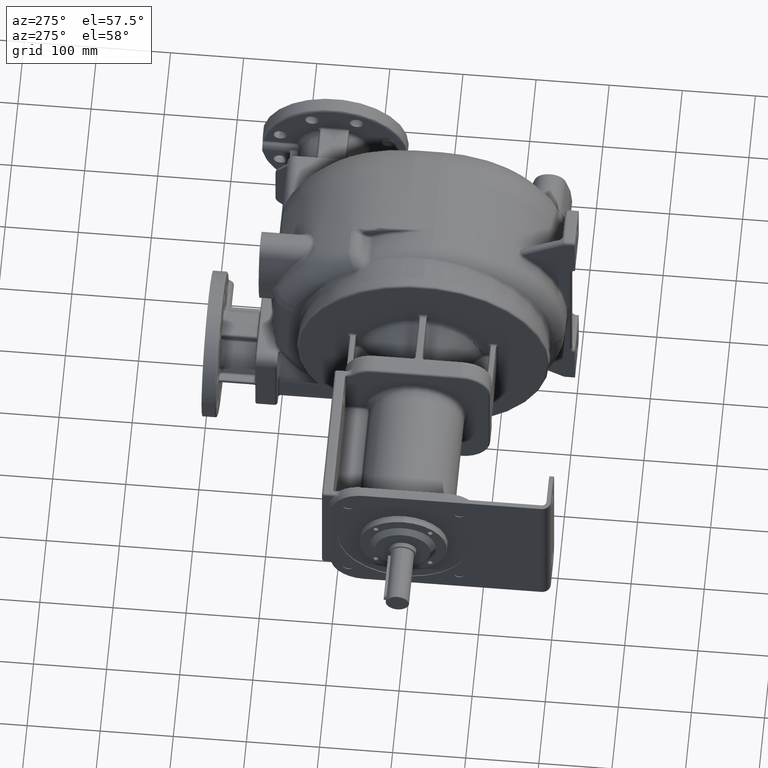
[diagram: clean part render]
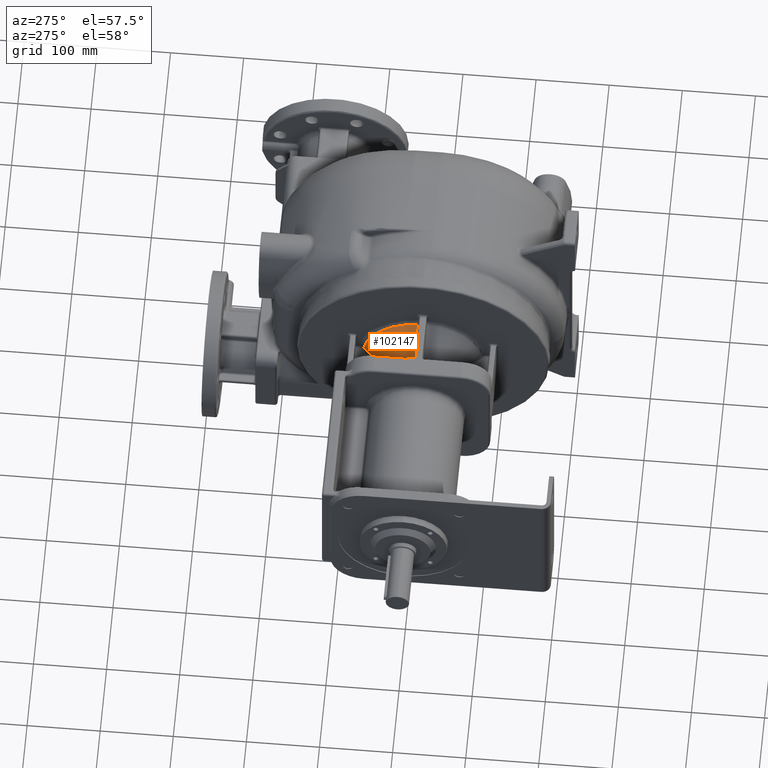
[diagram: same view with one face highlighted and labeled with its STEP entity id]
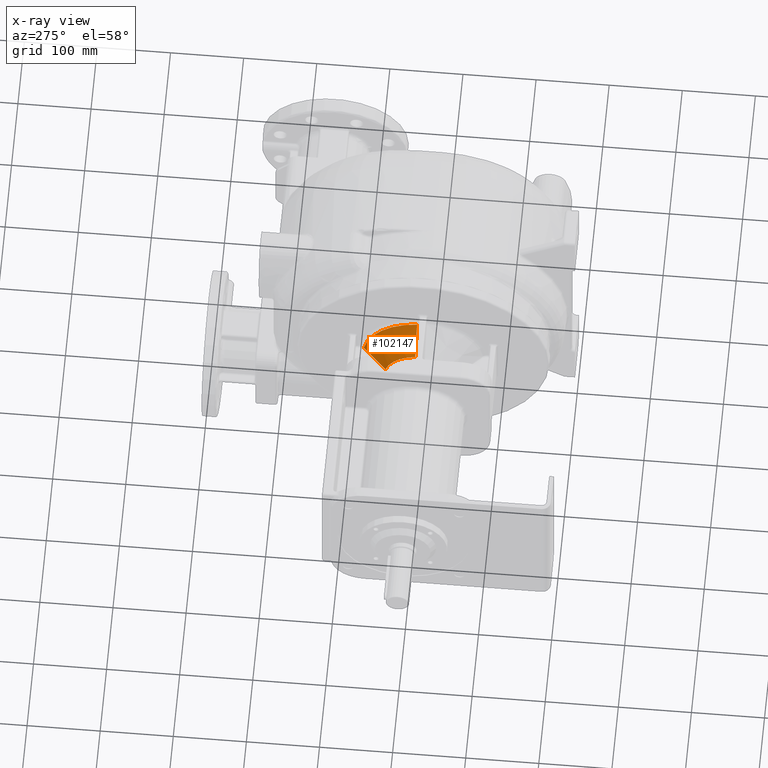
[diagram: x-ray of the same camera — body ghosted, the highlighted face saturated]
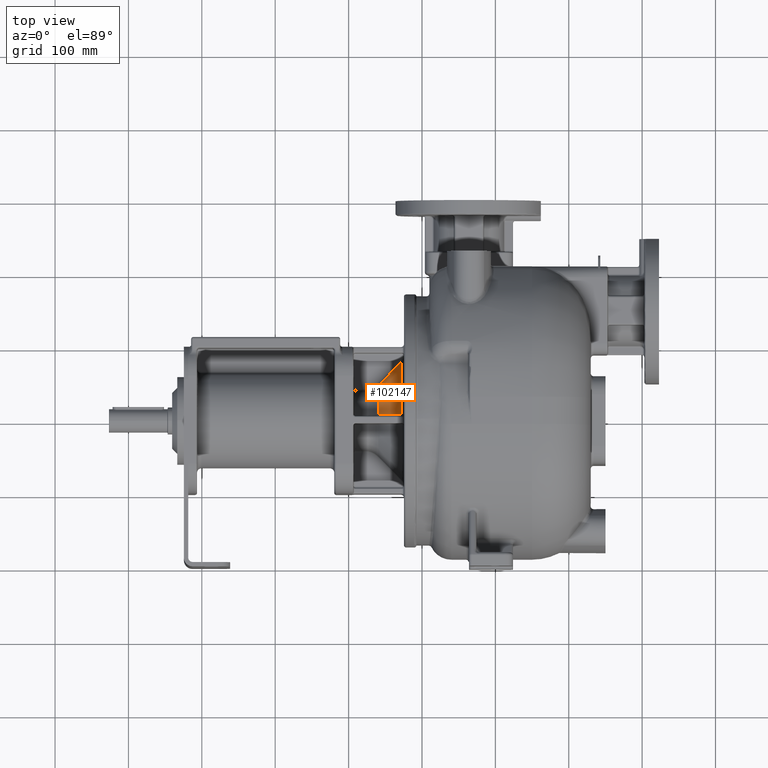
[diagram: same view with one face highlighted and labeled with its STEP entity id]
A machine part, auxiliary view. The second image highlights one B-rep face of the part: STEP entity #102147.
The next image is the same camera in x-ray: the body ghosted, the highlighted face saturated — about 0% of this face is hidden behind the body in this view.
A second angle (top view) of the same face is appended — the face is thin or edge-on in the first view.
In plain terms, the highlighted conical surface has half-angle 45 deg.
Its self-contained STEP definition (entity closure, byte-faithful):
#29071=CARTESIAN_POINT('',(-1.274289325510E2,2.077979841878E2,
8.151262536261E1));
#29098=CARTESIAN_POINT('',(-1.274289321881E2,2.E2,-1.185278943017E-14));
#29099=DIRECTION('',(-1.E0,0.E0,0.E0));
#29100=DIRECTION('',(0.E0,9.523118343316E-2,9.954551831710E-1));
#29101=AXIS2_PLACEMENT_3D('',#29098,#29099,#29100);
#37126=CARTESIAN_POINT('',(-1.594913784377E2,2.076732890505E2,
4.922789137682E1));
#37127=CARTESIAN_POINT('',(-1.585082714450E2,2.076794725161E2,
5.022190595174E1));
#37128=CARTESIAN_POINT('',(-1.564040398663E2,2.076919937559E2,
5.234825554139E1));
#37129=CARTESIAN_POINT('',(-1.528817329486E2,2.077105697974E2,
5.590347737648E1));
#37130=CARTESIAN_POINT('',(-1.488462292752E2,2.077292770627E2,
5.997223169626E1));
#37131=CARTESIAN_POINT('',(-1.443585869633E2,2.077474155547E2,
6.449221790828E1));
#37132=CARTESIAN_POINT('',(-1.393717879855E2,2.077649211226E2,
6.951033176401E1));
#37133=CARTESIAN_POINT('',(-1.338205713398E2,2.077817695262E2,
7.509178244219E1));
#37134=CARTESIAN_POINT('',(-1.296343877639E2,2.077926805594E2,
7.929760840512E1));
#37135=CARTESIAN_POINT('',(-1.274289325510E2,2.077979841878E2,
8.151262536261E1));
#37137=CARTESIAN_POINT('',(-1.594913780286E2,2.E2,0.E0));
#37138=DIRECTION('',(-1.E0,0.E0,0.E0));
#37139=DIRECTION('',(0.E0,1.540130482677E-1,9.880688138805E-1));
#37140=AXIS2_PLACEMENT_3D('',#37137,#37138,#37139);
#37142=CARTESIAN_POINT('',(-1.594913782006E2,2.482367734130E2,
1.246909464779E1));
#37143=CARTESIAN_POINT('',(-1.588385438946E2,2.489093419463E2,
1.247576714154E1));
#37144=CARTESIAN_POINT('',(-1.574806287737E2,2.503067908119E2,
1.248913757061E1));
#37145=CARTESIAN_POINT('',(-1.553086206592E2,2.525372804520E2,
1.250892612140E1));
#37146=CARTESIAN_POINT('',(-1.529348827201E2,2.549699820433E2,
1.252888114598E1));
#37147=CARTESIAN_POINT('',(-1.503149052481E2,2.576497247764E2,
1.254911061026E1));
#37148=CARTESIAN_POINT('',(-1.474041935481E2,2.606211019422E2,
1.256964339861E1));
#37149=CARTESIAN_POINT('',(-1.441695616246E2,2.639170110432E2,
1.259037859078E1));
#37150=CARTESIAN_POINT('',(-1.405501558577E2,2.675983692722E2,
1.261133450491E1));
#37151=CARTESIAN_POINT('',(-1.365589587325E2,2.716509071804E2,
1.263207222607E1));
#37152=CARTESIAN_POINT('',(-1.322455451495E2,2.760237061786E2,
1.265213547694E1));
#37153=CARTESIAN_POINT('',(-1.290788396236E2,2.792293414699E2,
1.266527686222E1));
#37154=CARTESIAN_POINT('',(-1.274289326053E2,2.808983563660E2,
1.267172431358E1));
#37468=CARTESIAN_POINT('',(-1.594913782006E2,2.482367734130E2,
1.246909464779E1));
#47614=VERTEX_POINT('',#29071);
#47617=VERTEX_POINT('',#37126);
#47642=VERTEX_POINT('',#37468);
#47644=VERTEX_POINT('',#37154);
#102134=CARTESIAN_POINT('',(-1.434601551084E2,2.E2,-1.087116013838E-14));
#102135=DIRECTION('',(1.E0,0.E0,0.E0));
#102136=DIRECTION('',(0.E0,-1.E0,0.E0));
#102137=AXIS2_PLACEMENT_3D('',#102134,#102135,#102136);
#102138=CONICAL_SURFACE('',#102137,6.585355339059E1,4.5E1);
#102140=ORIENTED_EDGE('',*,*,#102139,.F.);
#102142=ORIENTED_EDGE('',*,*,#102141,.T.);
#102143=ORIENTED_EDGE('',*,*,#102125,.T.);
#102144=ORIENTED_EDGE('',*,*,#90928,.F.);
#102145=EDGE_LOOP('',(#102140,#102142,#102143,#102144));
#102146=FACE_OUTER_BOUND('',#102145,.F.);
#102147=ADVANCED_FACE('',(#102146),#102138,.T.);
#29102=CIRCLE('',#29101,8.188477631085E1);
#37136=B_SPLINE_CURVE_WITH_KNOTS('',3,(#37126,#37127,#37128,#37129,#37130,
#37131,#37132,#37133,#37134,#37135),.UNSPECIFIED.,.F.,.F.,(4,1,1,1,1,1,1,4),(
0.E0,1.428571428571E-1,2.857142857143E-1,4.285714285714E-1,5.714285714286E-1,
7.142857142857E-1,8.571428571429E-1,1.E0),.UNSPECIFIED.);
#37141=CIRCLE('',#37140,4.982233047034E1);
#37155=B_SPLINE_CURVE_WITH_KNOTS('',3,(#37142,#37143,#37144,#37145,#37146,
#37147,#37148,#37149,#37150,#37151,#37152,#37153,#37154),.UNSPECIFIED.,.F.,.F.,(
4,1,1,1,1,1,1,1,1,1,4),(0.E0,1.E-1,2.E-1,3.E-1,4.E-1,5.E-1,6.E-1,7.E-1,8.E-1,
9.E-1,1.E0),.UNSPECIFIED.);
#90928=EDGE_CURVE('',#47614,#47644,#29102,.T.);
#102125=EDGE_CURVE('',#47642,#47644,#37155,.T.);
#102139=EDGE_CURVE('',#47617,#47614,#37136,.T.);
#102141=EDGE_CURVE('',#47617,#47642,#37141,.T.);